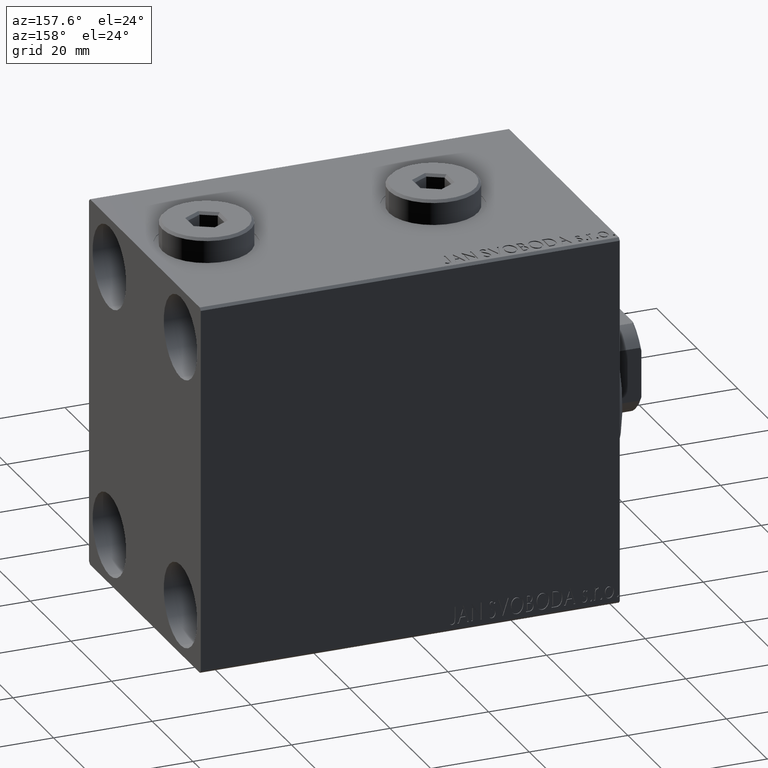
[diagram: clean part render]
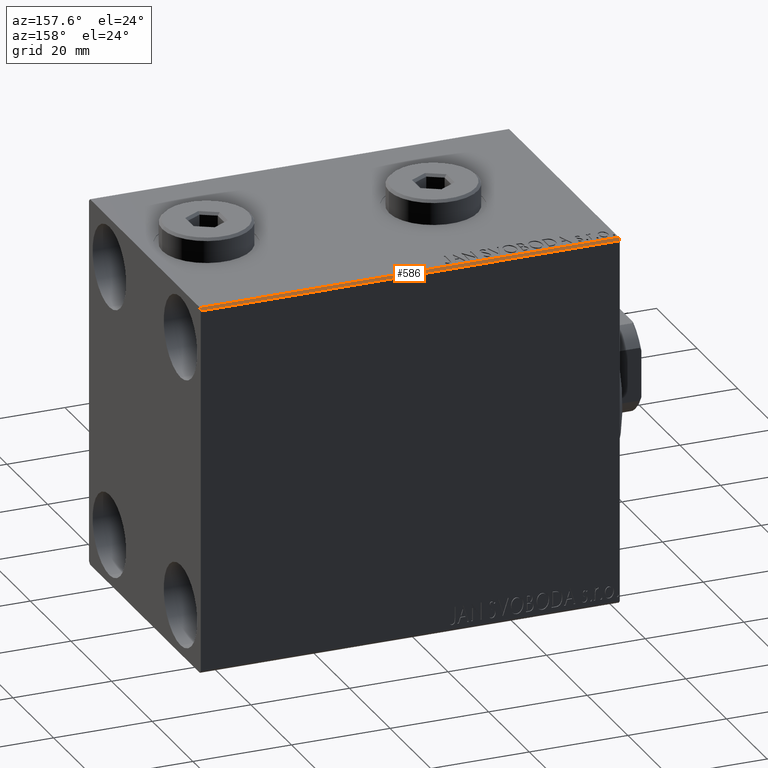
[diagram: same view with one face highlighted and labeled with its STEP entity id]
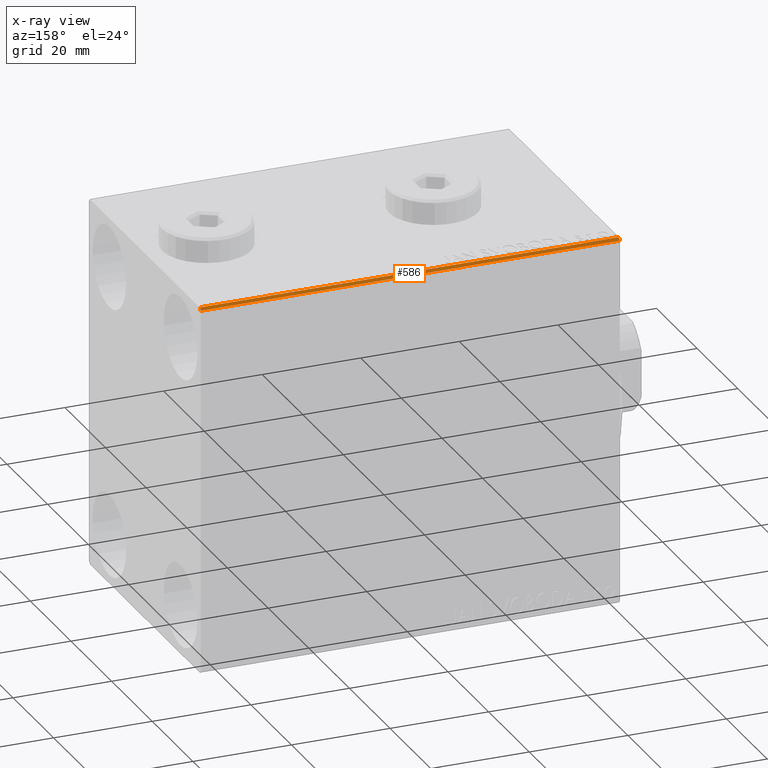
[diagram: x-ray of the same camera — body ghosted, the highlighted face saturated]
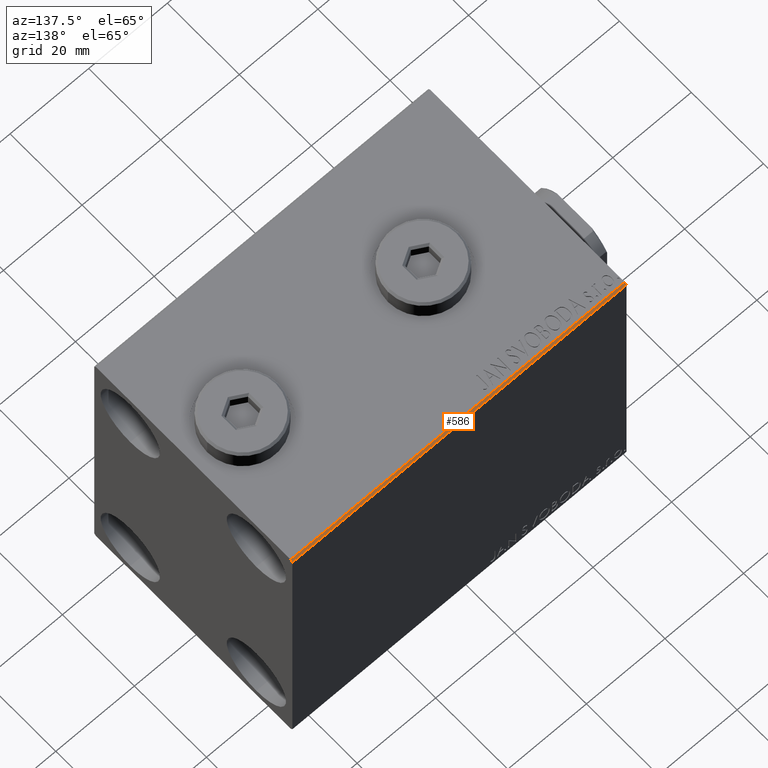
[diagram: same view with one face highlighted and labeled with its STEP entity id]
A machine part, auxiliary view. The second image highlights one B-rep face of the part: STEP entity #586.
The next image is the same camera in x-ray: the body ghosted, the highlighted face saturated — about 0% of this face is hidden behind the body in this view.
A second angle (auxiliary view) of the same face is appended — the face is thin or edge-on in the first view.
In plain terms, the highlighted planar face has unit normal (-0, -0.7071, -0.7071).
Its self-contained STEP definition (entity closure, byte-faithful):
#586 = ADVANCED_FACE ( 'NONE', ( #9834 ), #44354, .F. ) ;
#1757 = VECTOR ( 'NONE', #26860, 1000.000000000000000 ) ;
#3061 = CARTESIAN_POINT ( 'NONE',  ( 85.00000000000000000, 27.49999999999999645, 37.00000000000001421 ) ) ;
#4181 = LINE ( 'NONE', #27749, #44802 ) ;
#4581 = VERTEX_POINT ( 'NONE', #34465 ) ;
#6294 = EDGE_LOOP ( 'NONE', ( #29191, #41477, #44691, #22658 ) ) ;
#6492 = LINE ( 'NONE', #3061, #1757 ) ;
#9834 = FACE_OUTER_BOUND ( 'NONE', #6294, .T. ) ;
#15380 = CARTESIAN_POINT ( 'NONE',  ( 0.000000000000000000, 26.99999999999999645, 37.50000000000000711 ) ) ;
#16305 = DIRECTION ( 'NONE',  ( -0.000000000000000000, 0.7071067811865524577, -0.7071067811865426878 ) ) ;
#17765 = VECTOR ( 'NONE', #16305, 1000.000000000000000 ) ;
#20576 = CARTESIAN_POINT ( 'NONE',  ( 85.00000000000000000, 26.99999999999999645, 37.50000000000000711 ) ) ;
#21323 = LINE ( 'NONE', #15380, #17765 ) ;
#22360 = VERTEX_POINT ( 'NONE', #33926 ) ;
#22658 = ORIENTED_EDGE ( 'NONE', *, *, #40659, .F. ) ;
#26384 = CARTESIAN_POINT ( 'NONE',  ( 85.00000000000000000, 32.24999999999981526, 32.25000000000025580 ) ) ;
#26762 = DIRECTION ( 'NONE',  ( -0.000000000000000000, -0.7071067811865425767, -0.7071067811865524577 ) ) ;
#26860 = DIRECTION ( 'NONE',  ( 1.000000000000000000, 0.000000000000000000, 0.000000000000000000 ) ) ;
#27587 = CARTESIAN_POINT ( 'NONE',  ( 85.00000000000000000, 27.49999999999999645, 37.00000000000001421 ) ) ;
#27749 = CARTESIAN_POINT ( 'NONE',  ( 85.00000000000000000, 26.99999999999999645, 37.50000000000000711 ) ) ;
#29191 = ORIENTED_EDGE ( 'NONE', *, *, #34342, .F. ) ;
#29505 = VECTOR ( 'NONE', #29589, 1000.000000000000000 ) ;
#29589 = DIRECTION ( 'NONE',  ( -0.000000000000000000, -0.7071067811865524577, 0.7071067811865426878 ) ) ;
#29825 = LINE ( 'NONE', #26384, #29505 ) ;
#30779 = CARTESIAN_POINT ( 'NONE',  ( 0.000000000000000000, 26.99999999999999645, 37.50000000000000711 ) ) ;
#33926 = CARTESIAN_POINT ( 'NONE',  ( 0.000000000000000000, 27.49999999999999645, 37.00000000000001421 ) ) ;
#34342 = EDGE_CURVE ( 'NONE', #44255, #4581, #29825, .T. ) ;
#34465 = CARTESIAN_POINT ( 'NONE',  ( 85.00000000000000000, 26.99999999999999645, 37.50000000000000711 ) ) ;
#35033 = DIRECTION ( 'NONE',  ( -1.000000000000000000, 0.000000000000000000, 0.000000000000000000 ) ) ;
#35153 = VERTEX_POINT ( 'NONE', #30779 ) ;
#35447 = AXIS2_PLACEMENT_3D ( 'NONE', #20576, #26762, #44790 ) ;
#35557 = EDGE_CURVE ( 'NONE', #35153, #22360, #21323, .T. ) ;
#40595 = EDGE_CURVE ( 'NONE', #22360, #44255, #6492, .T. ) ;
#40659 = EDGE_CURVE ( 'NONE', #4581, #35153, #4181, .T. ) ;
#41477 = ORIENTED_EDGE ( 'NONE', *, *, #40595, .F. ) ;
#44255 = VERTEX_POINT ( 'NONE', #27587 ) ;
#44354 = PLANE ( 'NONE',  #35447 ) ;
#44691 = ORIENTED_EDGE ( 'NONE', *, *, #35557, .F. ) ;
#44790 = DIRECTION ( 'NONE',  ( -1.000000000000000000, 0.000000000000000000, 0.000000000000000000 ) ) ;
#44802 = VECTOR ( 'NONE', #35033, 1000.000000000000000 ) ;